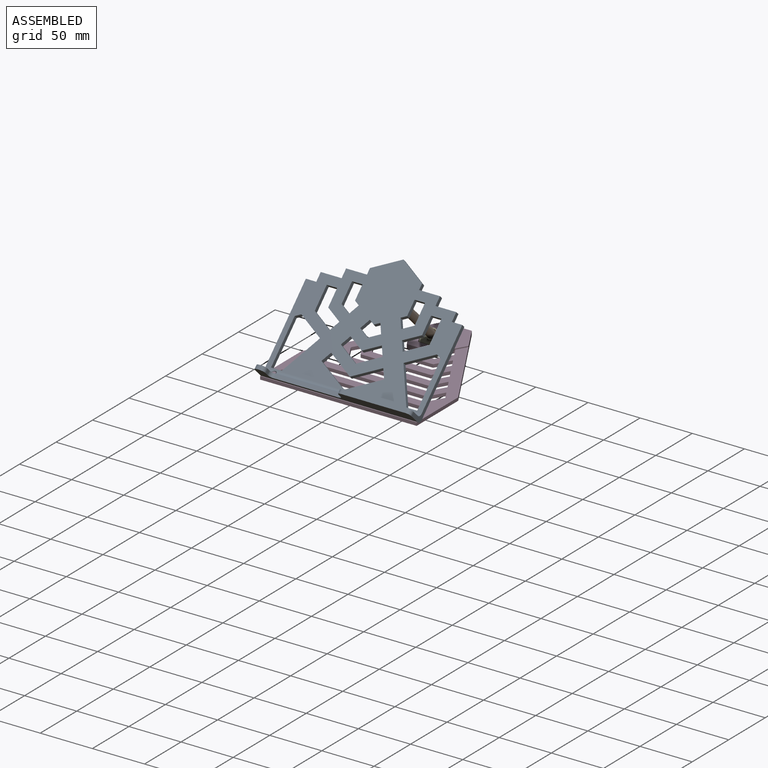
[diagram: assembled view]
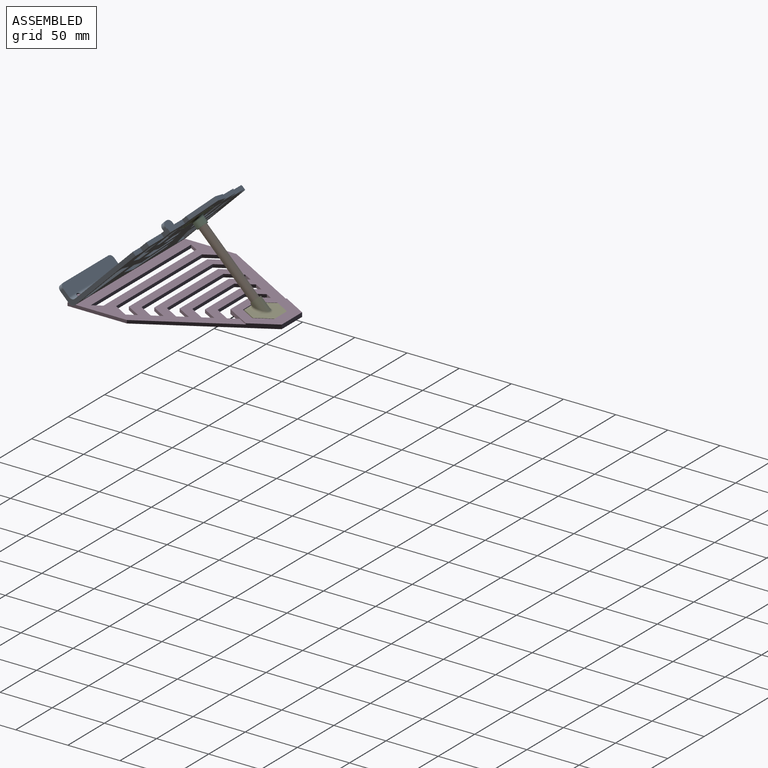
[diagram: assembled view, second angle]
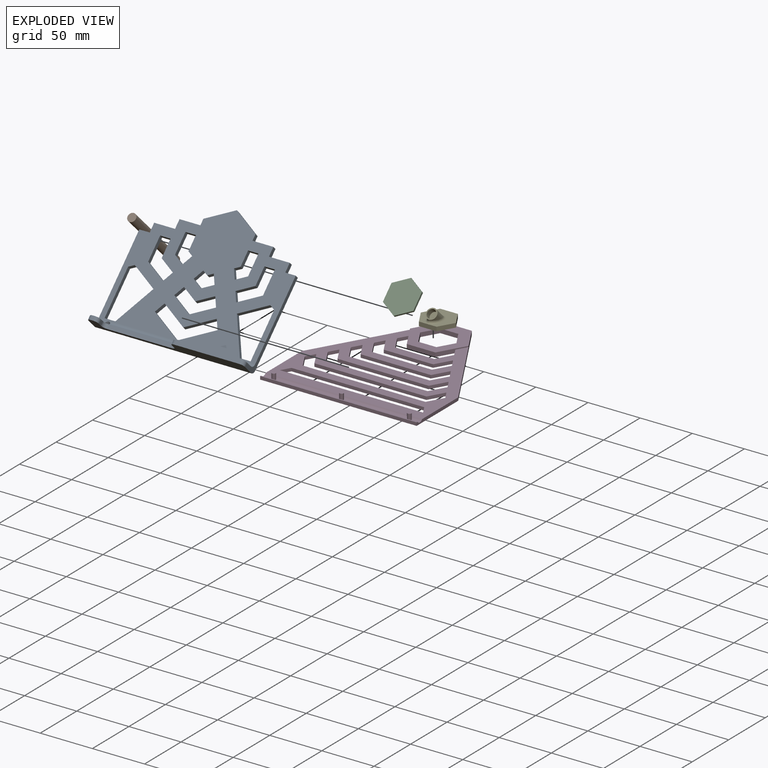
[diagram: exploded view]
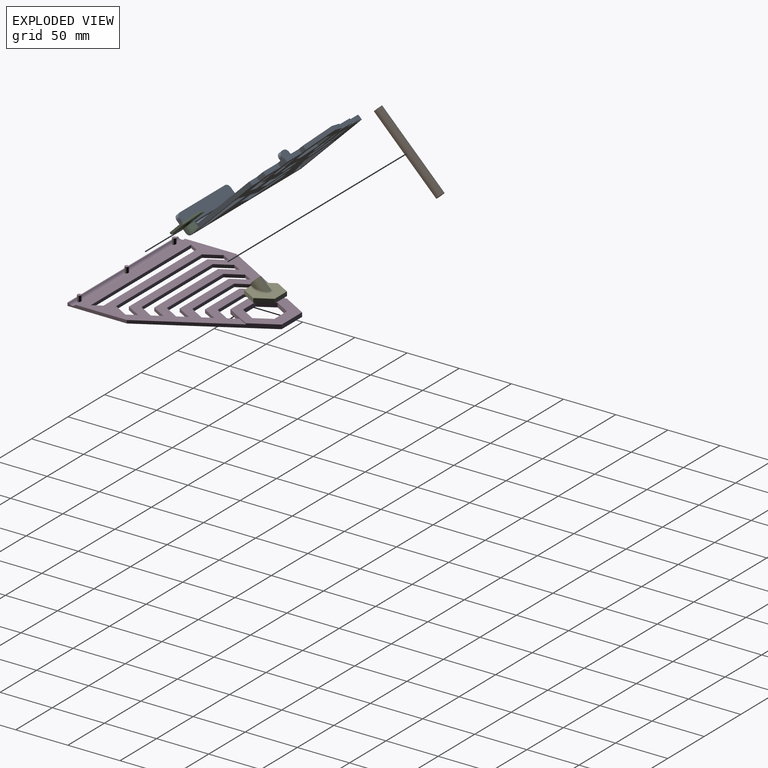
[diagram: exploded view, second angle]
ASSEMBLY  parts=5 mates=3
PART A: 116 faces, bbox 150x101.7x88.8 mm
  f0: cylinder r=4mm len=150mm, axis (1,0,0), area 890.2mm2, adj f14,f16,f17,f19,f22,f25,f113,f114
  f1: cylinder r=4mm len=150mm, axis (1,0,0), area 890.2mm2, adj f15,f17,f18,f19,f113,f114,f115
  f2: plane 1.41x1.41mm, normal (0.87,-0.35,-0.35), area 0mm2, adj f3,f15,f37,f112
  f3: plane 1.41x1.41mm, normal (-0.87,-0.35,-0.35), area 0mm2, adj f2,f15,f32,f112
  f4: plane 1.41x1.41mm, normal (0.87,0.35,0.35), area 0mm2, adj f5,f15,f32,f112
  f5: plane 1.41x1.41mm, normal (0,-0.71,-0.71), area 0mm2, adj f4,f15,f33,f112
  f6: plane 1.41x1.41mm, normal (0,0.71,0.71), area 0mm2, adj f7,f15,f33,f112
  f7: plane 1.41x1.41mm, normal (0.87,-0.35,-0.35), area 0mm2, adj f6,f15,f34,f112
  f8: plane 1.41x1.41mm, normal (-0.87,0.35,0.35), area 0mm2, adj f15,f34,f35,f112
  f9: plane 15x8.95mm, normal (-0.5,0.61,0.61), area 34.7mm2, adj f10,f14,f15,f35,f111,f112
  f10: plane 1.41x1.41mm, normal (-0.87,-0.35,-0.35), area 0mm2, adj f9,f11,f15,f112
  f11: plane 1.41x1.41mm, normal (0,0.71,0.71), area 0mm2, adj f10,f15,f36,f112
  f12: plane 1.41x1.41mm, normal (0,-0.71,-0.71), area 0mm2, adj f13,f15,f36,f112
  f13: plane 1.41x1.41mm, normal (-0.87,0.35,0.35), area 0mm2, adj f12,f15,f37,f112
  f14: plane 150x81.93mm, normal (0,-0.71,0.71), area 9901.8mm2, adj f0,f9,f17,f19,f35,f38,f39,f40
  f15: plane 150x84.76mm, normal (0,0.71,-0.71), area 9722.4mm2, adj f1,f2,f3,f4,f5,f6,f7,f8
  f16: plane 74x8.49mm, normal (0,0.71,0.71), area 836.6mm2, adj f0,f19,f20,f21,f26,f27,f31
  f17: plane 72.37x62.22mm, normal (-1,0,0), area 393.4mm2, adj f0,f1,f14,f15,f18,f25,f30,f76
  f18: plane 150x11.31mm, normal (0,-0.71,-0.71), area 1553.1mm2, adj f1,f17,f19,f20,f21,f22,f23,f24
  f19: plane 72.37x62.22mm, normal (1,0,0), area 393.4mm2, adj f0,f1,f14,f15,f16,f18,f31,f75
  f20: plane 62x2.83mm, normal (0,-0.71,0.71), area 248mm2, adj f16,f18,f26,f31
  f21: plane 5.66x5.66mm, normal (-1,0,0), area 16mm2, adj f16,f18,f26,f27
  f22: plane 62x2.83mm, normal (0,-0.71,0.71), area 248mm2, adj f0,f18,f27,f28
  f23: plane 5.66x5.66mm, normal (1,0,0), area 16mm2, adj f18,f25,f28,f29
  f24: plane 2.83x2.83mm, normal (0,-0.71,0.71), area 8mm2, adj f18,f25,f29,f30
  f25: plane 14x8.49mm, normal (0,0.71,0.71), area 116.6mm2, adj f0,f17,f23,f24,f28,f29,f30
  f26: cylinder r=4mm len=5.66mm, axis (0,0.71,0.71), area 25.1mm2, adj f16,f18,f20,f21
  f27: cylinder r=4mm len=5.66mm, axis (0,-0.71,-0.71), area 25.1mm2, adj f16,f18,f21,f22
  f28: cylinder r=4mm len=5.66mm, axis (0,0.71,0.71), area 25.1mm2, adj f18,f22,f23,f25
  f29: cylinder r=4mm len=5.66mm, axis (0,-0.71,-0.71), area 25.1mm2, adj f18,f23,f24,f25
  f30: cylinder r=4mm len=5.66mm, axis (0,0.71,0.71), area 25.1mm2, adj f17,f18,f24,f25
  f31: cylinder r=4mm len=5.66mm, axis (0,-0.71,-0.71), area 25.1mm2, adj f16,f18,f19,f20
  f32: plane 15x7.54mm, normal (0.5,-0.61,-0.61), area 34.6mm2, adj f3,f4,f15,f112
  f33: plane 13.66x13.66mm, normal (1,0,0), area 34.6mm2, adj f5,f6,f15,f112
  f34: plane 15x7.54mm, normal (0.5,0.61,0.61), area 34.6mm2, adj f7,f8,f15,f112
  f35: plane 2.83x2.83mm, normal (0.87,0.35,0.35), area 0mm2, adj f8,f9,f14,f15,f110
  f36: plane 13.66x13.66mm, normal (-1,0,0), area 34.6mm2, adj f11,f12,f15,f112
  f37: plane 15x7.54mm, normal (-0.5,-0.61,-0.61), area 34.6mm2, adj f2,f13,f15,f112
  f38: plane 15.11x9mm, normal (-0.5,-0.61,-0.61), area 69.8mm2, adj f14,f15,f39,f44
  f39: plane 8.95x8.95mm, normal (0.87,-0.35,-0.35), area 40mm2, adj f14,f15,f38,f40
  f40: plane 20x10.99mm, normal (0.5,0.61,0.61), area 92.4mm2, adj f14,f15,f39,f41
  f41: plane 20x10.99mm, normal (-0.5,0.61,0.61), area 92.4mm2, adj f14,f15,f40,f42
  f42: plane 8.95x8.95mm, normal (-0.87,-0.35,-0.35), area 40mm2, adj f14,f15,f41,f43
  f43: plane 14.89x8.91mm, normal (0.5,-0.61,-0.61), area 68.8mm2, adj f14,f15,f42,f44
  f44: plane 2.92x2.92mm, normal (1,0,0), area 0.5mm2, adj f14,f15,f38,f43
  f45: plane 28.96x14.65mm, normal (0.5,0.61,0.61), area 133.7mm2, adj f14,f15,f46,f51
  f46: plane 2.83x2.83mm, normal (0,0.71,0.71), area 8.3mm2, adj f14,f15,f45,f47
  f47: plane 28.96x14.65mm, normal (-0.5,0.61,0.61), area 133.7mm2, adj f14,f15,f46,f48
  f48: plane 8.95x8.95mm, normal (-0.87,-0.35,-0.35), area 40mm2, adj f14,f15,f47,f49
  f49: plane 25x13.03mm, normal (0.5,-0.61,-0.61), area 115.5mm2, adj f14,f15,f48,f50
  f50: plane 25x13.03mm, normal (-0.5,-0.61,-0.61), area 115.5mm2, adj f14,f15,f49,f51
  f51: plane 8.95x8.95mm, normal (0.87,-0.35,-0.35), area 40mm2, adj f14,f15,f45,f50
  f52: plane 15.08x15.08mm, normal (1,0,0), area 69.3mm2, adj f14,f15,f53,f58
  f53: plane 15x8.95mm, normal (0.5,-0.61,-0.61), area 69.3mm2, adj f14,f15,f52,f54
  f54: plane 8.95x8.95mm, normal (0.87,0.35,0.35), area 40mm2, adj f14,f15,f53,f55
  f55: plane 2.83x2.83mm, normal (-0.5,0.61,0.61), area 0mm2, adj f14,f15,f54,f56
  f56: plane 19.99x10.99mm, normal (-0.5,0.61,0.61), area 92.3mm2, adj f14,f15,f55,f57
  f57: plane 19.16x19.16mm, normal (-1,0,0), area 92.4mm2, adj f14,f15,f56,f58
  f58: plane 10x2.83mm, normal (0,-0.71,-0.71), area 40mm2, adj f14,f15,f52,f57
  f59: plane 26.9x26.9mm, normal (-0.87,0.35,0.35), area 157.2mm2, adj f14,f15,f60,f63
  f60: plane 25x13.03mm, normal (-0.5,-0.61,-0.61), area 115.5mm2, adj f14,f15,f59,f61
  f61: plane 5x4.87mm, normal (0.5,-0.61,-0.61), area 23.1mm2, adj f14,f15,f60,f62
  f62: plane 35.06x35.06mm, normal (1,0,0), area 182.3mm2, adj f14,f15,f61,f63
  f63: plane 10.35x2.83mm, normal (0,0.71,0.71), area 41.4mm2, adj f14,f15,f59,f62
  f64: plane 8.95x8.95mm, normal (-1,0,0), area 34.6mm2, adj f14,f15,f65,f78
  f65: plane 20x2.83mm, normal (0,0.71,0.71), area 80mm2, adj f14,f15,f64,f66
  f66: plane 6.92x6.92mm, normal (-1,0,0), area 23.1mm2, adj f14,f15,f65,f67
  f67: plane 5.01x4.87mm, normal (-0.5,0.61,0.61), area 23.1mm2, adj f14,f15,f66,f68
  f68: plane 19.99x10.99mm, normal (-0.5,0.61,0.61), area 92.3mm2, adj f14,f15,f67,f69
  f69: plane 25x13.03mm, normal (0.5,0.61,0.61), area 115.5mm2, adj f14,f15,f68,f70
  f70: plane 6.91x6.91mm, normal (1,0,0), area 23.1mm2, adj f14,f15,f69,f71
  f71: plane 20x2.83mm, normal (0,0.71,0.71), area 80mm2, adj f14,f15,f70,f72
  f72: plane 8.95x8.95mm, normal (1,0,0), area 34.6mm2, adj f14,f15,f71,f73
  f73: plane 20x2.83mm, normal (0,0.71,0.71), area 80mm2, adj f14,f15,f72,f74
  f74: plane 8.95x8.95mm, normal (1,0,0), area 34.6mm2, adj f14,f15,f73,f75
  f75: plane 10x2.83mm, normal (0,0.71,0.71), area 40mm2, adj f14,f15,f19,f74
  f76: plane 10x2.83mm, normal (0,0.71,0.71), area 40mm2, adj f14,f15,f17,f77
  f77: plane 8.95x8.95mm, normal (-1,0,0), area 34.6mm2, adj f14,f15,f76,f78
  f78: plane 20x2.83mm, normal (0,0.71,0.71), area 80mm2, adj f14,f15,f64,f77
  f79: plane 19.16x19.16mm, normal (1,0,0), area 92.4mm2, adj f14,f15,f80,f84
  f80: plane 20x10.99mm, normal (0.5,0.61,0.61), area 92.4mm2, adj f14,f15,f79,f81
  f81: plane 8.95x8.95mm, normal (-0.87,0.35,0.35), area 40mm2, adj f14,f15,f80,f82
  f82: plane 15x8.95mm, normal (-0.5,-0.61,-0.61), area 69.3mm2, adj f14,f15,f81,f83
  f83: plane 15.08x15.08mm, normal (-1,0,0), area 69.3mm2, adj f14,f15,f82,f84
  f84: plane 10x2.83mm, normal (0,-0.71,-0.71), area 40mm2, adj f14,f15,f79,f83
  f85: plane 10x6.91mm, normal (-0.5,0.61,0.61), area 46.2mm2, adj f14,f15,f86,f90
  f86: plane 8.95x8.95mm, normal (-0.87,-0.35,-0.35), area 40mm2, adj f14,f15,f85,f87
  f87: plane 4.98x4.88mm, normal (0.5,-0.61,-0.61), area 23.1mm2, adj f14,f15,f86,f88
  f88: plane 5.02x4.88mm, normal (-0.5,-0.61,-0.61), area 23.2mm2, adj f14,f15,f87,f89
  f89: plane 8.95x8.95mm, normal (0.87,-0.35,-0.35), area 40mm2, adj f14,f15,f88,f90
  f90: plane 10x6.91mm, normal (0.5,0.61,0.61), area 46.2mm2, adj f14,f15,f85,f89
  f91: plane 17.12x17.12mm, normal (-1,0,0), area 80.8mm2, adj f14,f15,f92,f96
  f92: plane 10x2.83mm, normal (0,-0.71,-0.71), area 40mm2, adj f14,f15,f91,f93
  f93: plane 13.04x13.04mm, normal (1,0,0), area 57.7mm2, adj f14,f15,f92,f94
  f94: plane 5x4.87mm, normal (0.5,-0.61,-0.61), area 23.1mm2, adj f14,f15,f93,f95
  f95: plane 8.95x8.95mm, normal (0.87,0.35,0.35), area 40mm2, adj f14,f15,f94,f96
  f96: plane 10x6.91mm, normal (-0.5,0.61,0.61), area 46.2mm2, adj f14,f15,f91,f95
  f97: plane 8.95x8.95mm, normal (-0.87,0.35,0.35), area 40mm2, adj f14,f15,f98,f103
  f98: plane 2.83x2.83mm, normal (-0.5,-0.61,-0.61), area 0mm2, adj f14,f15,f97,f99
  f99: plane 4.99x4.89mm, normal (-0.5,-0.61,-0.61), area 23.1mm2, adj f14,f15,f98,f100
  f100: plane 13.02x13.02mm, normal (-1,0,0), area 57.6mm2, adj f14,f15,f99,f101
  f101: plane 10x2.83mm, normal (0,-0.71,-0.71), area 40mm2, adj f14,f15,f100,f102
  f102: plane 17.12x17.12mm, normal (1,0,0), area 80.8mm2, adj f14,f15,f101,f103
  f103: plane 10x6.91mm, normal (0.5,0.61,0.61), area 46.2mm2, adj f14,f15,f97,f102
  f104: plane 2.83x2.83mm, normal (0.5,-0.61,-0.61), area 0mm2, adj f14,f15,f105,f109
  f105: plane 26.9x26.9mm, normal (0.87,0.35,0.35), area 157.2mm2, adj f14,f15,f104,f106
  f106: plane 10.35x2.83mm, normal (0,0.71,0.71), area 41.4mm2, adj f14,f15,f105,f107
  f107: plane 35.06x35.06mm, normal (-1,0,0), area 182.3mm2, adj f14,f15,f106,f108
  f108: plane 5x4.87mm, normal (-0.5,-0.61,-0.61), area 23.1mm2, adj f14,f15,f107,f109
  f109: plane 24.99x13.03mm, normal (0.5,-0.61,-0.61), area 115.4mm2, adj f14,f15,f104,f108
  f110: plane 1.46x1.46mm, normal (0.87,-0.35,-0.35), area 0.1mm2, adj f14,f35,f111,f112
  f111: plane 1.44x1.44mm, normal (-1,0,0), area 0.1mm2, adj f9,f14,f110,f112
  f112: plane 30x24.49mm, normal (0,0.71,-0.71), area 779.4mm2, adj f2,f3,f4,f5,f6,f7,f8,f9
  f113: cylinder r=2.3mm len=6.39mm, axis (0,0,-1), area 81.7mm2, adj f0,f1
  f114: cylinder r=2.3mm len=6.39mm, axis (0,0,-1), area 81.7mm2, adj f0,f1
  f115: cylinder r=2.3mm len=6.39mm, axis (0,0,-1), area 81.7mm2, adj f0,f1
PART B: 3 faces, bbox 8x8x84.5 mm
  f0: cylinder r=4mm len=84.5mm, axis (0,0,-1), area 2123.7mm2, adj f1,f2
  f1: plane 8x8mm, normal (0,0,1), area 50.3mm2, adj f0
  f2: plane 8x8mm, normal (0,0,-1), area 50.3mm2, adj f0
PART C: 13 faces, bbox 29.2x33.7x10 mm
  f0: plane 14.6x8.43mm, normal (-0.5,0.87,0), area 33.7mm2, adj f1,f5,f6,f7
  f1: plane 16.86x2mm, normal (-1,0,0), area 33.7mm2, adj f0,f2,f6,f7
  f2: plane 14.6x8.43mm, normal (-0.5,-0.87,0), area 33.7mm2, adj f1,f3,f6,f7
  f3: plane 14.6x8.43mm, normal (0.5,-0.87,0), area 33.7mm2, adj f2,f4,f6,f7
  f4: plane 16.86x2mm, normal (1,0,0), area 33.7mm2, adj f3,f5,f6,f7
  f5: plane 14.6x8.43mm, normal (0.5,0.87,0), area 33.7mm2, adj f0,f4,f6,f7
  f6: plane 33.72x29.2mm, normal (0,0,-1), area 738.4mm2, adj f0,f1,f2,f3,f4,f5
  f7: plane 33.72x29.2mm, normal (0,0,1), area 566.4mm2, adj f0,f1,f2,f3,f4,f5,f12
  f8: cylinder r=4.2mm len=8.4mm, axis (0,0,-1), area 211.1mm2, adj f10,f11
  f9: cylinder r=5.2mm len=10.4mm, axis (0,0,-1), area 189.5mm2, adj f10,f12
  f10: plane 10.4x10.4mm, normal (0,0,1), area 29.5mm2, adj f8,f9
  f11: plane 8.4x8.4mm, normal (0,0,1), area 55.4mm2, adj f8
  f12: torus R=7.4mm, axis (0,0,1), area 130.3mm2, adj f7,f9
PART D: 71 faces, bbox 150x162.6x7 mm
  f0: plane 150x130.52mm, normal (0,0,1), area 8949.7mm2, adj f1,f2,f6,f22,f23,f24,f25,f26
  f1: plane 56.91x3mm, normal (1,0,0), area 163.2mm2, adj f0,f3,f4,f5,f6,f7,f8,f9
  f2: plane 56.91x3mm, normal (-1,0,0), area 163.2mm2, adj f0,f3,f4,f5,f6,f7,f8,f9
  f3: plane 150.31x150mm, normal (0,0,-1), area 9541mm2, adj f1,f2,f5,f16,f17,f18,f19,f20
  f4: cylinder r=3.99mm len=150mm, axis (-1,0,0), area 907.9mm2, adj f1,f2,f6,f7,f10,f12,f14
  f5: plane 150x12.32mm, normal (0,0,-1), area 1847.2mm2, adj f1,f2,f3,f9
  f6: plane 150x0.49mm, normal (0,-0.71,0.71), area 103.1mm2, adj f0,f1,f2,f4
  f7: plane 150x0.49mm, normal (0,0.71,0.71), area 103.1mm2, adj f1,f2,f4,f8
  f8: plane 150x1mm, normal (0,0,1), area 150mm2, adj f1,f2,f7,f9
  f9: plane 150x3mm, normal (0,-1,0), area 450mm2, adj f1,f2,f5,f8
  f10: cylinder r=1.9mm len=5.66mm, axis (0,0,-1), area 67.6mm2, adj f4,f11
  f11: plane 3.8x3.8mm, normal (0,0,1), area 11.3mm2, adj f10
  f12: cylinder r=1.9mm len=5.66mm, axis (0,0,-1), area 67.6mm2, adj f4,f13
  f13: plane 3.8x3.8mm, normal (0,0,1), area 11.3mm2, adj f12
  f14: cylinder r=1.9mm len=5.66mm, axis (0,0,-1), area 67.6mm2, adj f4,f15
  f15: plane 3.8x3.8mm, normal (0,0,1), area 11.3mm2, adj f14
  f16: plane 17.32x4mm, normal (0,1,0), area 69.3mm2, adj f3,f17,f21,f70
  f17: plane 15x8.66mm, normal (-0.87,0.5,0), area 69.3mm2, adj f3,f16,f18,f70
  f18: plane 15x8.66mm, normal (-0.87,-0.5,0), area 69.3mm2, adj f3,f17,f19,f70
  f19: plane 17.32x4mm, normal (0,-1,0), area 69.3mm2, adj f3,f18,f20,f70
  f20: plane 15x8.66mm, normal (0.87,-0.5,0), area 69.3mm2, adj f3,f19,f21,f70
  f21: plane 15x8.66mm, normal (0.87,0.5,0), area 69.3mm2, adj f3,f16,f20,f70
  f22: plane 8.66x5mm, normal (-0.87,-0.5,0), area 30mm2, adj f0,f3,f23,f25
  f23: plane 127.26x3mm, normal (0,-1,0), area 381.8mm2, adj f0,f3,f22,f24
  f24: plane 8.65x5mm, normal (0.87,-0.5,0), area 30mm2, adj f0,f3,f23,f25
  f25: plane 137.26x3mm, normal (0,1,0), area 411.8mm2, adj f0,f3,f22,f24
  f26: plane 107.46x3mm, normal (0,-1,0), area 322.4mm2, adj f0,f3,f27,f33
  f27: plane 14.92x8.58mm, normal (-0.87,-0.5,0), area 51.6mm2, adj f0,f3,f26,f28
  f28: plane 8.66x5mm, normal (0.87,-0.5,0), area 30mm2, adj f0,f3,f27,f29
  f29: plane 14.91x8.57mm, normal (0.87,0.5,0), area 51.6mm2, adj f0,f3,f28,f30
  f30: plane 117.48x3mm, normal (0,1,0), area 352.4mm2, adj f0,f3,f29,f31
  f31: plane 14.96x8.62mm, normal (-0.87,0.5,0), area 51.8mm2, adj f0,f3,f30,f32
  f32: plane 8.66x5mm, normal (-0.87,-0.5,0), area 30mm2, adj f0,f3,f31,f33
  f33: plane 14.97x8.62mm, normal (0.87,-0.5,0), area 51.8mm2, adj f0,f3,f26,f32
  f34: plane 47.37x3mm, normal (0,-1,0), area 142.1mm2, adj f0,f3,f35,f41
  f35: plane 14.97x8.63mm, normal (-0.87,-0.5,0), area 51.9mm2, adj f0,f3,f34,f36
  f36: plane 8.66x5mm, normal (0.87,-0.5,0), area 30mm2, adj f0,f3,f35,f37
  f37: plane 14.96x8.63mm, normal (0.87,0.5,0), area 51.8mm2, adj f0,f3,f36,f38
  f38: plane 57.38x3mm, normal (0,1,0), area 172.2mm2, adj f0,f3,f37,f39
  f39: plane 14.99x8.64mm, normal (-0.87,0.5,0), area 51.9mm2, adj f0,f3,f38,f40
  f40: plane 8.66x5mm, normal (-0.87,-0.5,0), area 30mm2, adj f0,f3,f39,f41
  f41: plane 14.99x8.65mm, normal (0.87,-0.5,0), area 51.9mm2, adj f0,f3,f34,f40
  f42: plane 37.35x3mm, normal (0,1,0), area 112.1mm2, adj f0,f3,f43,f49
  f43: plane 14.99x8.65mm, normal (-0.87,0.5,0), area 51.9mm2, adj f0,f3,f42,f44
  f44: plane 8.66x5mm, normal (-0.87,-0.5,0), area 30mm2, adj f0,f3,f43,f45
  f45: plane 15x8.66mm, normal (0.87,-0.5,0), area 69.3mm2, adj f3,f44,f46,f69,f70
  f46: plane 27.34x4mm, normal (0,-1,0), area 109.4mm2, adj f3,f45,f47,f70
  f47: plane 24.99x14.42mm, normal (-0.87,-0.5,0), area 80.8mm2, adj f0,f3,f46,f48,f68,f70
  f48: plane 8.66x5mm, normal (0.87,-0.5,0), area 30mm2, adj f0,f3,f47,f49
  f49: plane 14.98x8.64mm, normal (0.87,0.5,0), area 51.9mm2, adj f0,f3,f42,f48
  f50: plane 87.43x3mm, normal (0,-1,0), area 262.3mm2, adj f0,f3,f51,f57
  f51: plane 14.94x8.6mm, normal (-0.87,-0.5,0), area 51.7mm2, adj f0,f3,f50,f52
  f52: plane 8.66x5mm, normal (0.87,-0.5,0), area 30mm2, adj f0,f3,f51,f53
  f53: plane 14.93x8.59mm, normal (0.87,0.5,0), area 51.7mm2, adj f0,f3,f52,f54
  f54: plane 97.44x3mm, normal (0,1,0), area 292.4mm2, adj f0,f3,f53,f55
  f55: plane 14.97x8.62mm, normal (-0.87,0.5,0), area 51.8mm2, adj f0,f3,f54,f56
  f56: plane 8.66x5mm, normal (-0.87,-0.5,0), area 30mm2, adj f0,f3,f55,f57
  f57: plane 14.97x8.63mm, normal (0.87,-0.5,0), area 51.9mm2, adj f0,f3,f50,f56
  f58: plane 67.4x3mm, normal (0,-1,0), area 202.2mm2, adj f0,f3,f59,f65
  f59: plane 14.95x8.62mm, normal (-0.87,-0.5,0), area 51.8mm2, adj f0,f3,f58,f60
  f60: plane 8.66x5mm, normal (0.87,-0.5,0), area 30mm2, adj f0,f3,f59,f61
  f61: plane 14.95x8.61mm, normal (0.87,0.5,0), area 51.7mm2, adj f0,f3,f60,f62
  f62: plane 77.41x3mm, normal (0,1,0), area 232.3mm2, adj f0,f3,f61,f63
  f63: plane 14.98x8.63mm, normal (-0.87,0.5,0), area 51.9mm2, adj f0,f3,f62,f64
  f64: plane 8.66x5mm, normal (-0.87,-0.5,0), area 30mm2, adj f0,f3,f63,f65
  f65: plane 14.98x8.64mm, normal (0.87,-0.5,0), area 51.9mm2, adj f0,f3,f58,f64
  f66: plane 27.93x4mm, normal (0,1,0), area 111.7mm2, adj f3,f67,f68,f70
  f67: plane 105.72x61.04mm, normal (0.87,0.5,0), area 394.5mm2, adj f0,f1,f3,f66,f69,f70
  f68: plane 105.72x61.04mm, normal (-0.87,0.5,0), area 394.5mm2, adj f0,f2,f3,f47,f66,f70
  f69: plane 10x5.77mm, normal (0.87,-0.5,0), area 11.5mm2, adj f0,f45,f67,f70
  f70: plane 56.19x49.47mm, normal (0,0,1), area 1293.8mm2, adj f16,f17,f18,f19,f20,f21,f45,f46
PART E: 15 faces, bbox 29.4x33.8x17.5 mm
  f0: cylinder r=4.2mm len=9.94mm, axis (-0.71,0,0.71), area 149.1mm2, adj f1,f11,f12
  f1: plane 0.88x0.07mm, normal (0,0,1), area 0mm2, adj f0,f12
  f2: plane 16.97x4.11mm, normal (-1,0,0), area 67.4mm2, adj f3,f7,f8,f9,f14
  f3: plane 14.6x8.43mm, normal (-0.5,-0.87,0), area 67.4mm2, adj f2,f4,f8,f9
  f4: plane 14.6x8.43mm, normal (0.5,-0.87,0), area 67.4mm2, adj f3,f5,f8,f9
  f5: plane 16.86x4mm, normal (1,0,0), area 67.4mm2, adj f4,f6,f8,f9
  f6: plane 14.6x8.43mm, normal (0.5,0.87,0), area 67.4mm2, adj f5,f7,f8,f9
  f7: plane 14.6x8.43mm, normal (-0.5,0.87,0), area 67.4mm2, adj f2,f6,f8,f9
  f8: plane 33.72x29.2mm, normal (0,0,-1), area 738.4mm2, adj f2,f3,f4,f5,f6,f7
  f9: plane 33.72x29.2mm, normal (0,0,1), area 508.2mm2, adj f2,f3,f4,f5,f6,f7,f13,f14
  f10: cylinder r=5.2mm len=17.35mm, axis (-0.71,0,0.71), area 229.1mm2, adj f11,f13
  f11: plane 10.41x7.37mm, normal (-0.71,0,0.71), area 29.5mm2, adj f0,f10,f14
  f12: plane 8.4x5.93mm, normal (-0.71,0,0.71), area 55.4mm2, adj f0,f1
  f13: bspline ~20.06x14.39mm, area 136.2mm2, adj f9,f10,f14
  f14: bspline ~4.87x4.05mm, area 11.3mm2, adj f2,f9,f11,f13
PLACE A t=(-74.07,-2.92,-100.35)mm
PLACE B rot(axis=(1,0,0),45deg) t=(0.93,124,-92.93)mm
PLACE C rot(axis=(-1,0,0),135deg) t=(0.93,64.25,-33.18)mm
PLACE D rot(axis=(1,-0.06,0.06),0deg) t=(-74.07,5.08,-97.03)mm
PLACE E rot(axis=(0,0,1),90deg) t=(0.7,129.98,-98.03)mm
MATE slider E.f8 <-> D.f3  axis (0,0,1) through (-7.73,144.58,-100.03)mm
MATE fastened A.f1 <-> D.f4  axis (1,0,0) through (75.93,-2.92,-94.69)mm
MATE fastened B.f0 <-> C.f8  axis (0,-0.71,0.71) through (0.93,64.25,-33.18)mm
